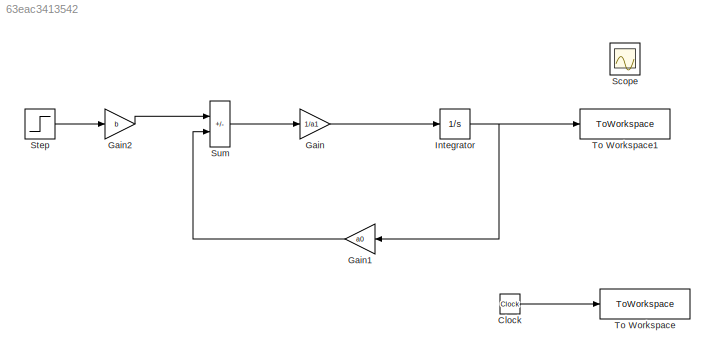
MODEL slx_63eac3413542
KIND model
CONFIG AbsTol = auto
CONFIG EnableMultiTasking = off
CONFIG FixedStep = auto
CONFIG MaxStep = auto
CONFIG MinStep = auto
CONFIG RelTol = 1e-3
CONFIG SampleTimeConstraint = Unconstrained
CONFIG SolverName = VariableStepAuto
CONFIG StartTime = 0.0
CONFIG StopTime = t_finish
BLOCK [Clock] Clock
BLOCK [Gain] Gain
  Gain = 1/a1
BLOCK [Gain] Gain1
  Gain = a0
  NameLocation = top
BLOCK [Gain] Gain2
  Gain = b
BLOCK [Integrator] Integrator
  InitialCondition = x0
BLOCK [Scope] Scope
  Floating = off
  NumInputPorts = 1
  ScopeSpecificationString = Simulink.scopes.TimeScopeBlockCfg('CurrentConfiguration', extmgr.ConfigurationSet(extmgr.Configuration('Core','General UI',true),extmgr.Configuration('Core','Source UI',true),extmgr.Configuration('Sources','WiredSimulink',true),extmgr.Configuration('Visuals','Time Domain',true),extmgr.Configuration('Tools','Plot Navigation',true),extmgr.Configuration('Tools','Measurements',true)),'Version','2022b'...<+1ch>
BLOCK [Step] Step
  After = u0 + du
  Before = u0
  SampleTime = 0
  Time = t0
BLOCK [Sum] Sum
  IconShape = rectangular
  Inputs = |+-
BLOCK [ToWorkspace] To Workspace
  FixptAsFi = on
  MaxDataPoints = inf
  SampleTime = -1
  VariableName = t
BLOCK [ToWorkspace] To Workspace1
  FixptAsFi = on
  MaxDataPoints = inf
  SampleTime = -1
  VariableName = x
LINE Clock:1 -> To Workspace:1
LINE Gain1:1 -> Sum:2
LINE Gain2:1 -> Sum:1
LINE Gain:1 -> Integrator:1
NET Integrator:1 -> Gain1:1, To Workspace1:1
LINE Step:1 -> Gain2:1
LINE Sum:1 -> Gain:1
note: NET lines group one-source signal fan-out (src -> all destinations, sorted); 1:1 wires keep LINE
